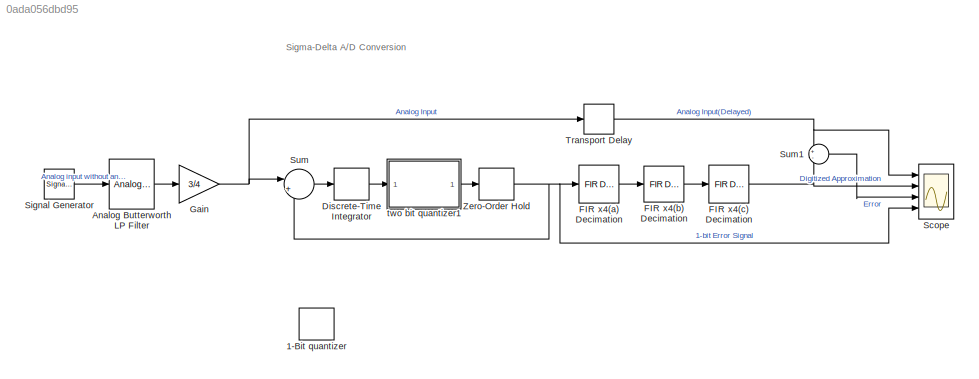
MODEL slx_0ada056dbd95
KIND model
CONFIG AbsTol = 1e-6
CONFIG FixedStep = auto
CONFIG MaxStep = 1/512000
CONFIG MinStep = auto
CONFIG RelTol = 1e-3
CONFIG SampleTimeConstraint = Unconstrained
CONFIG Solver = ode5
CONFIG SolverMode = SingleTasking
CONFIG SolverName = ode5
CONFIG StartTime = 0.0
CONFIG StopTime = 0.01
BLOCK [Signum] 1-Bit quantizer
BLOCK [Reference] Analog Butterworth LP Filter  REF=dsparch4/Analog
Filter Design
  Ports = [1, 1]
  SourceBlock = dsparch4/Analog\nFilter Design
  SourceType = Analog Filter Design
BLOCK [DiscreteIntegrator] Discrete-Time Integrator
  ICPrevOutput = DiscIntNeverNeededParam
  ICPrevScaledInput = DiscIntNeverNeededParam
  InitialConditionSetting = State (most efficient)
  Ports = [1, 1]
  SampleTime = 1/512000
BLOCK [Reference] FIR x4(a) Decimation  REF=dspmlti4/FIR
Decimation
  Ports = [1, 1]
  SourceBlock = dspmlti4/FIR\nDecimation
  SourceType = FIR Decimation
  UserDataPersistent = on
BLOCK [Reference] FIR x4(b) Decimation  REF=dspmlti4/FIR
Decimation
  Ports = [1, 1]
  SourceBlock = dspmlti4/FIR\nDecimation
  SourceType = FIR Decimation
  UserDataPersistent = on
BLOCK [Reference] FIR x4(c) Decimation  REF=dspmlti4/FIR
Decimation
  Ports = [1, 1]
  SourceBlock = dspmlti4/FIR\nDecimation
  SourceType = FIR Decimation
  UserDataPersistent = on
BLOCK [Gain] Gain
  Gain = 3/4
BLOCK [Scope] Scope
  NumInputPorts = 4
  Ports = [4]
  ScopeSpecificationString = Simulink.scopes.TimeScopeBlockCfg('CurrentConfiguration', extmgr.ConfigurationSet(extmgr.Configuration('Core','General UI',true),extmgr.Configuration('Core','Source UI',true),extmgr.Configuration('Sources','WiredSimulink',true,'DataLoggingVariableName','ScopeData1','DataLoggingSaveFormat','StructureWithTime','DataLoggingMaxPoints','15000','DataLoggingLimitDataPoints',true,'DataLoggingDecimation','...<+3863ch>
BLOCK [SignalGenerator] Signal Generator
  Frequency = 1000
  Ports = [0, 1]
BLOCK [Sum] Sum
  IconShape = round
  Inputs = |+-
  Ports = [2, 1]
BLOCK [Sum] Sum1
  IconShape = round
  Inputs = +-
  Ports = [2, 1]
BLOCK [TransportDelay] Transport Delay
  DelayTime = 336/512000
  Ports = [1, 1]
BLOCK [ZeroOrderHold] Zero-Order Hold
  SampleTime = 1/512000
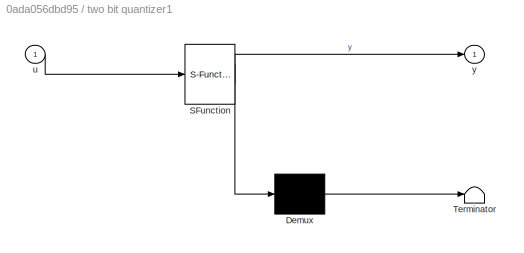
BLOCK [SubSystem] two bit quantizer1
  ErrorFcn = Stateflow.Translate.translate
  PermitHierarchicalResolution = ExplicitOnly
  Ports = [1, 1]
  RequestExecContextInheritance = off
  SFBlockType = MATLAB Function
  TreatAsAtomicUnit = on
  Variant = off
BLOCK [Demux] two bit quantizer1/ Demux 
  Outputs = 1
  Ports = [1, 1]
BLOCK [S-Function] two bit quantizer1/ SFunction 
  EnableBusSupport = on
  FunctionName = sf_sfun
  PortCounts = [1 2]
  Ports = [1, 2]
  SFunctionDeploymentMode = off
  Tag = Stateflow S-Function two_bitquant 1
BLOCK [Terminator] two bit quantizer1/ Terminator 
BLOCK [Inport] two bit quantizer1/u
  IconDisplay = Port number
BLOCK [Outport] two bit quantizer1/y
  IconDisplay = Port number
ANNOTATION (root): Sigma-Delta A/D Conversion
LINE Analog Butterworth LP Filter:1 -> Gain:1
LINE Discrete-Time Integrator:1 -> two bit quantizer1:1
LINE FIR x4(a) Decimation:1 -> FIR x4(b) Decimation:1
LINE FIR x4(b) Decimation:1 -> FIR x4(c) Decimation:1
NET FIR x4(c) Decimation:1 -> Scope:2, Sum1:2
NET Gain:1 -> Sum:1, Transport Delay:1
LINE Signal Generator:1 -> Analog Butterworth LP Filter:1
LINE Sum1:1 -> Scope:3
LINE Sum:1 -> Discrete-Time Integrator:1
NET Transport Delay:1 -> Scope:1, Sum1:1
NET Zero-Order Hold:1 -> FIR x4(a) Decimation:1, Scope:4, Sum:2
LINE two bit quantizer1:1 -> Zero-Order Hold:1
note: NET lines group one-source signal fan-out (src -> all destinations, sorted); 1:1 wires keep LINE
CHART two bit quantizer1 states=1 transitions=1
  STATE_LABEL 'eML_blk_kernel()'
  STATE_LABEL 'SCRIPT:\nfunction y = fcn(u)\nif u>=0.5\n    y = 1;\nelseif u<=-0.5\n    y = -1;\nelseif u>=0\n    y = 0.5;\nelse\n    y = -0.5;\nend'
